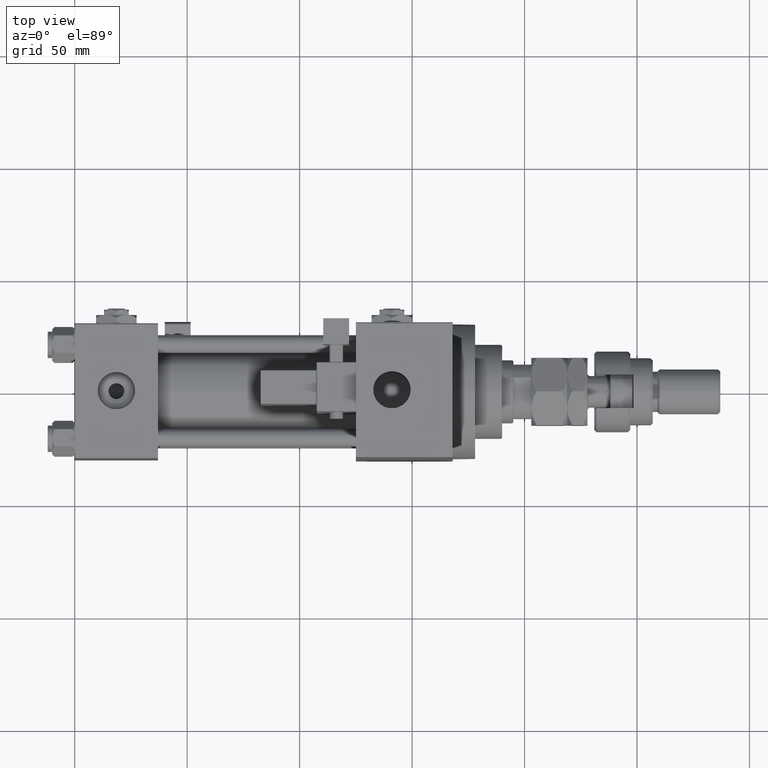
[diagram: clean part render]
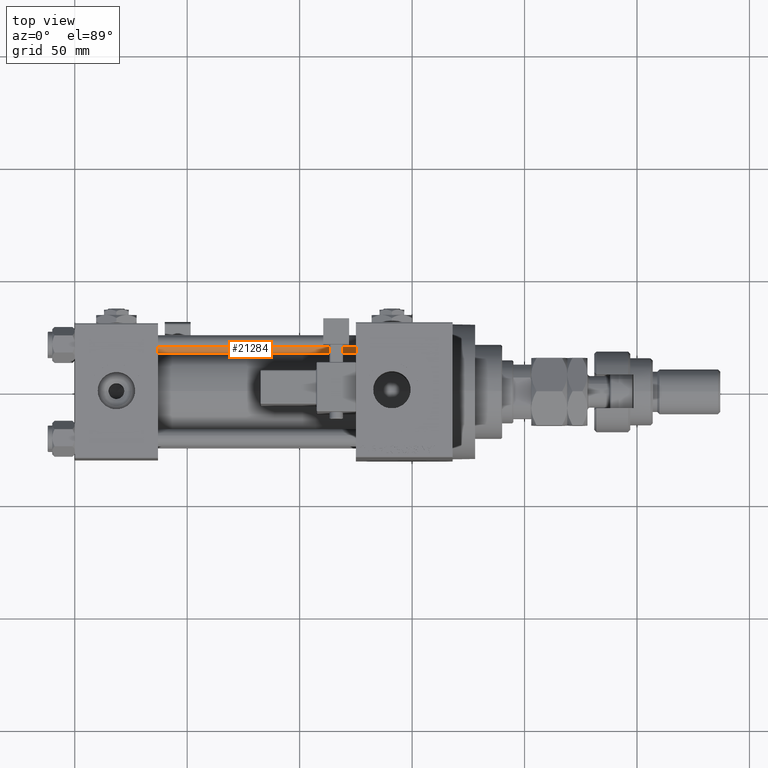
[diagram: same view with one face highlighted and labeled with its STEP entity id]
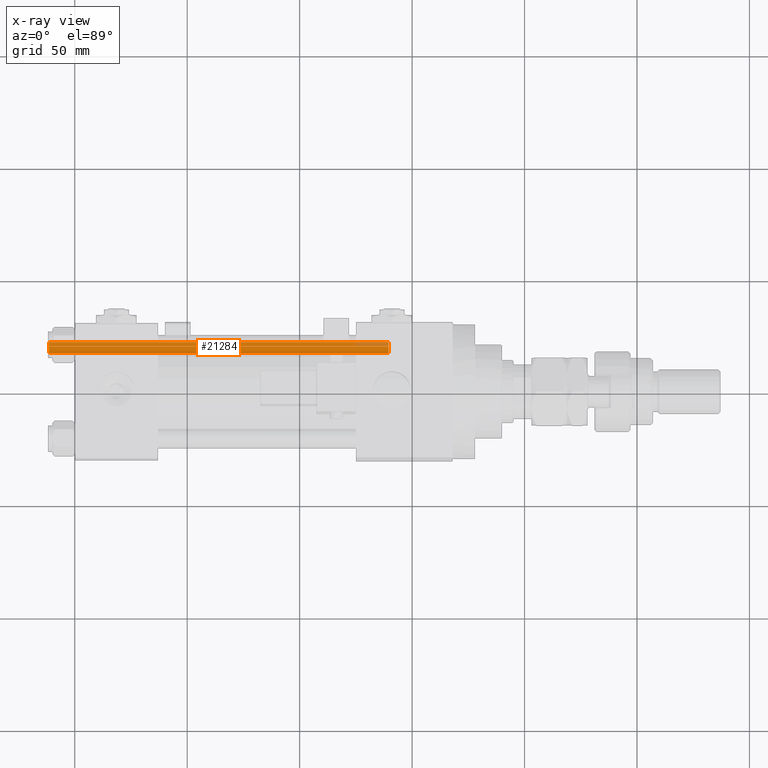
[diagram: x-ray of the same camera — body ghosted, the highlighted face saturated]
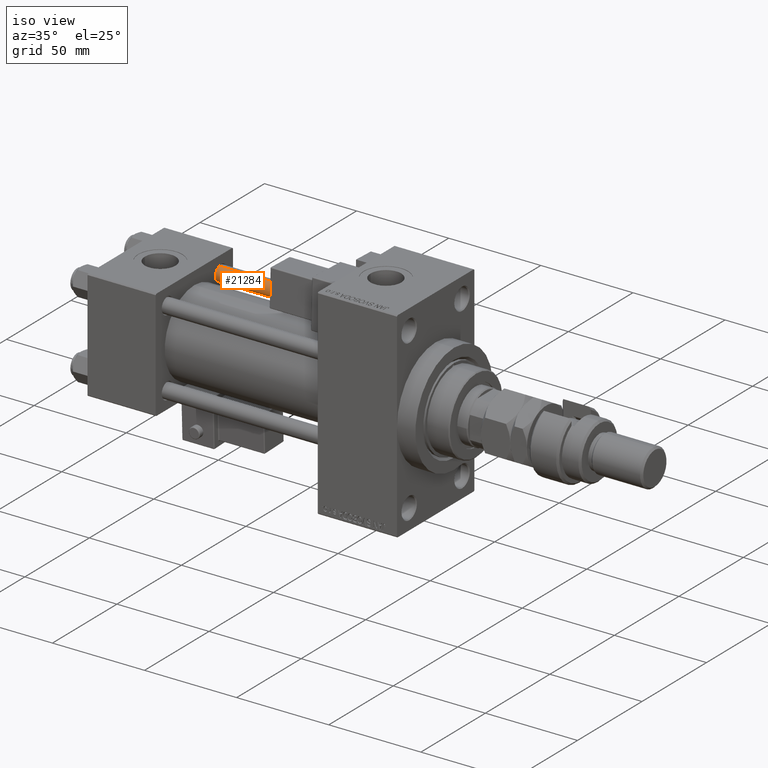
[diagram: same view with one face highlighted and labeled with its STEP entity id]
A machine part, top view. The second image highlights one B-rep face of the part: STEP entity #21284.
The next image is the same camera in x-ray: the body ghosted, the highlighted face saturated — about 3% of this face is hidden behind the body in this view.
A second angle (iso view) of the same face is appended — the face is thin or edge-on in the first view.
In plain terms, the highlighted cylindrical surface (edge-blend (fillet) strip) has radius 4 mm, axis along (-1, -0, 0).
Its self-contained STEP definition (entity closure, byte-faithful):
#512 = DIRECTION ( 'NONE',  ( -1.000000000000000000, 0.000000000000000000, 0.000000000000000000 ) ) ;
#575 = DIRECTION ( 'NONE',  ( 1.000000000000000000, 0.000000000000000000, 0.000000000000000000 ) ) ;
#2334 = AXIS2_PLACEMENT_3D ( 'NONE', #25650, #46664, #512 ) ;
#3099 = AXIS2_PLACEMENT_3D ( 'NONE', #46097, #33129, #49962 ) ;
#3471 = VERTEX_POINT ( 'NONE', #27934 ) ;
#5189 = CYLINDRICAL_SURFACE ( 'NONE', #2334, 4.000000000000000000 ) ;
#5222 = ORIENTED_EDGE ( 'NONE', *, *, #6399, .T. ) ;
#5732 = CIRCLE ( 'NONE', #3099, 4.000000000000000000 ) ;
#6399 = EDGE_CURVE ( 'NONE', #46687, #11544, #34837, .T. ) ;
#7141 = EDGE_CURVE ( 'NONE', #46687, #51512, #23585, .T. ) ;
#7273 = EDGE_CURVE ( 'NONE', #3471, #51512, #5732, .T. ) ;
#9112 = LINE ( 'NONE', #43846, #30737 ) ;
#10155 = VECTOR ( 'NONE', #49555, 1000.000000000000000 ) ;
#11544 = VERTEX_POINT ( 'NONE', #39057 ) ;
#12985 = DIRECTION ( 'NONE',  ( -0.000000000000000000, -0.000000000000000000, -1.000000000000000000 ) ) ;
#13188 = ORIENTED_EDGE ( 'NONE', *, *, #7273, .T. ) ;
#17933 = DIRECTION ( 'NONE',  ( 0.000000000000000000, 0.000000000000000000, -1.000000000000000000 ) ) ;
#19802 = AXIS2_PLACEMENT_3D ( 'NONE', #21818, #17933, #575 ) ;
#21284 = ADVANCED_FACE ( 'NONE', ( #51329 ), #5189, .T. ) ;
#21818 = CARTESIAN_POINT ( 'NONE',  ( 0.000000000000000000, 0.000000000000000000, 151.5000000000000284 ) ) ;
#23337 = ORIENTED_EDGE ( 'NONE', *, *, #7141, .F. ) ;
#23585 = LINE ( 'NONE', #24690, #10155 ) ;
#24084 = CARTESIAN_POINT ( 'NONE',  ( 4.000000000000000000, 4.898587196589412829E-16, 151.5000000000000284 ) ) ;
#24690 = CARTESIAN_POINT ( 'NONE',  ( 4.000000000000000000, 4.898587196589412829E-16, 152.0000000000000000 ) ) ;
#25650 = CARTESIAN_POINT ( 'NONE',  ( 0.000000000000000000, 0.000000000000000000, 152.0000000000000000 ) ) ;
#27867 = EDGE_CURVE ( 'NONE', #11544, #3471, #9112, .T. ) ;
#27934 = CARTESIAN_POINT ( 'NONE',  ( -4.000000000000000000, 0.000000000000000000, 0.5000000000000281997 ) ) ;
#28558 = ORIENTED_EDGE ( 'NONE', *, *, #27867, .T. ) ;
#30737 = VECTOR ( 'NONE', #12985, 1000.000000000000000 ) ;
#33129 = DIRECTION ( 'NONE',  ( -0.000000000000000000, -0.000000000000000000, 1.000000000000000000 ) ) ;
#34837 = CIRCLE ( 'NONE', #19802, 4.000000000000000000 ) ;
#39057 = CARTESIAN_POINT ( 'NONE',  ( -4.000000000000000000, 0.000000000000000000, 151.5000000000000284 ) ) ;
#43846 = CARTESIAN_POINT ( 'NONE',  ( -4.000000000000000000, 0.000000000000000000, 152.0000000000000000 ) ) ;
#44158 = CARTESIAN_POINT ( 'NONE',  ( 4.000000000000000000, 4.898587196589412829E-16, 0.5000000000000281997 ) ) ;
#46097 = CARTESIAN_POINT ( 'NONE',  ( 0.000000000000000000, 0.000000000000000000, 0.5000000000000281997 ) ) ;
#46664 = DIRECTION ( 'NONE',  ( -0.000000000000000000, -0.000000000000000000, -1.000000000000000000 ) ) ;
#46687 = VERTEX_POINT ( 'NONE', #24084 ) ;
#49555 = DIRECTION ( 'NONE',  ( -0.000000000000000000, -0.000000000000000000, -1.000000000000000000 ) ) ;
#49962 = DIRECTION ( 'NONE',  ( 1.000000000000000000, 0.000000000000000000, 0.000000000000000000 ) ) ;
#51329 = FACE_OUTER_BOUND ( 'NONE', #53442, .T. ) ;
#51512 = VERTEX_POINT ( 'NONE', #44158 ) ;
#53442 = EDGE_LOOP ( 'NONE', ( #23337, #5222, #28558, #13188 ) ) ;